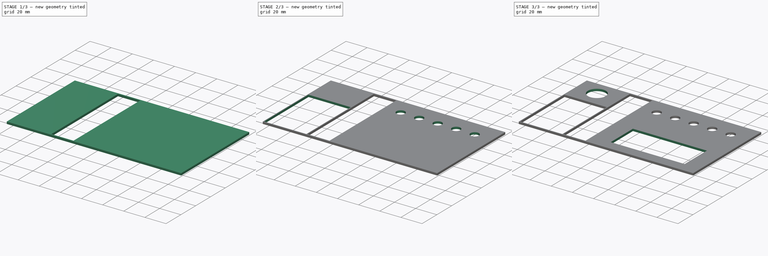
[diagram: build sequence overview — one tinted view per stage of 3, left to right]
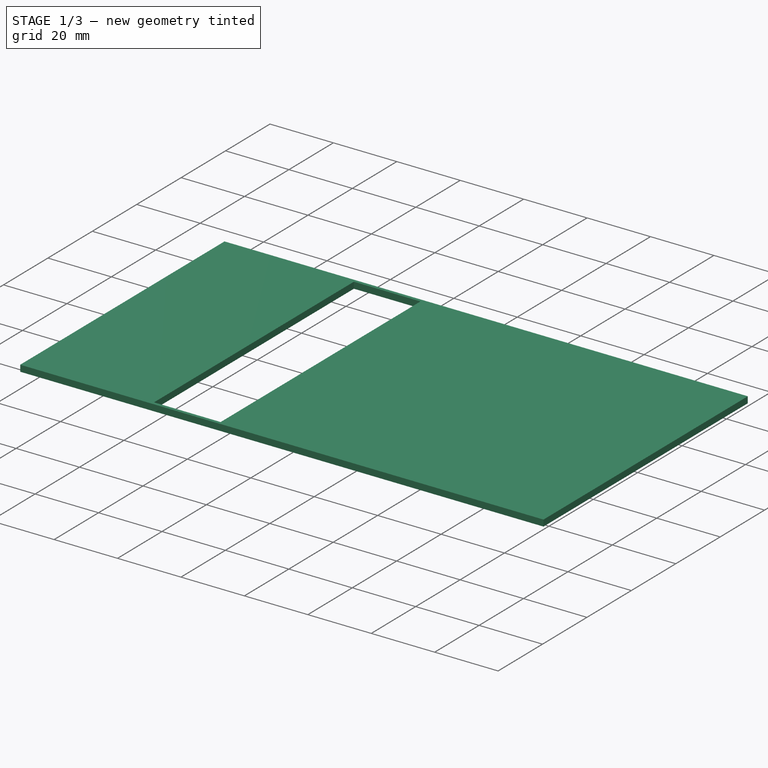
[diagram: stage 1 of 3 — iso view after this stage's code; geometry added in this stage tinted green]
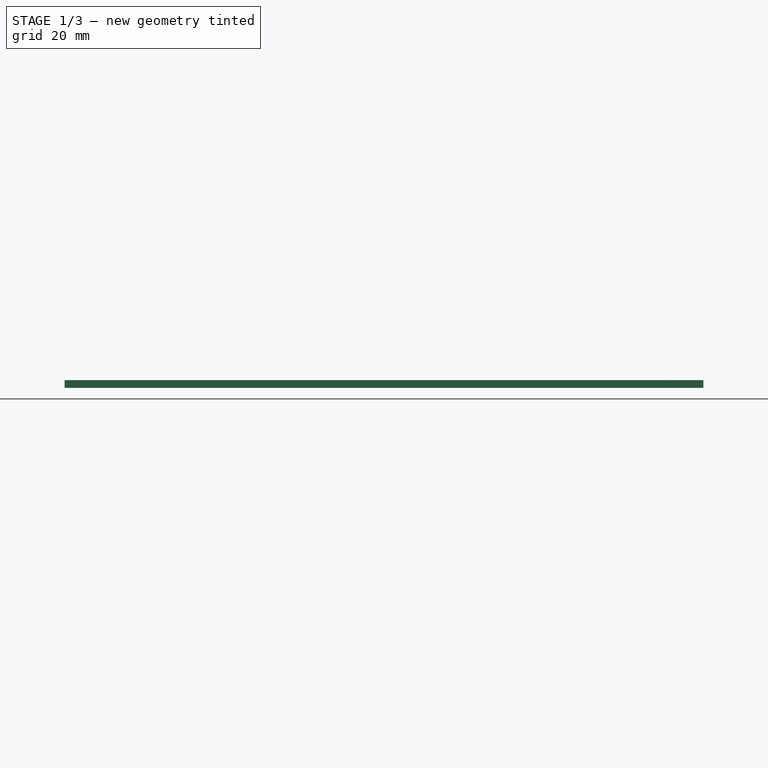
[diagram: stage 1 of 3 — front view after this stage's code; geometry added in this stage tinted green]
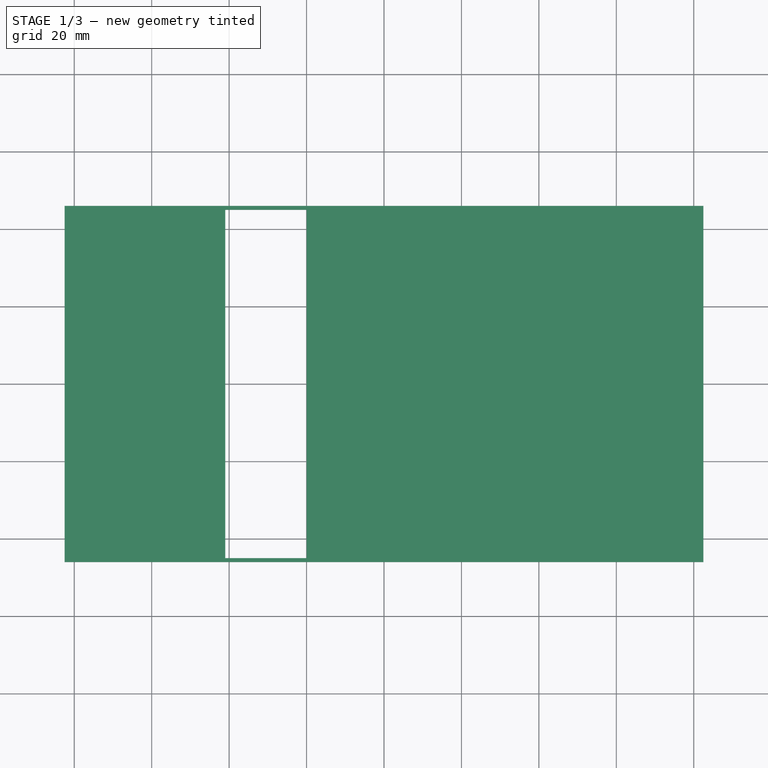
[diagram: stage 1 of 3 — top view after this stage's code; geometry added in this stage tinted green]
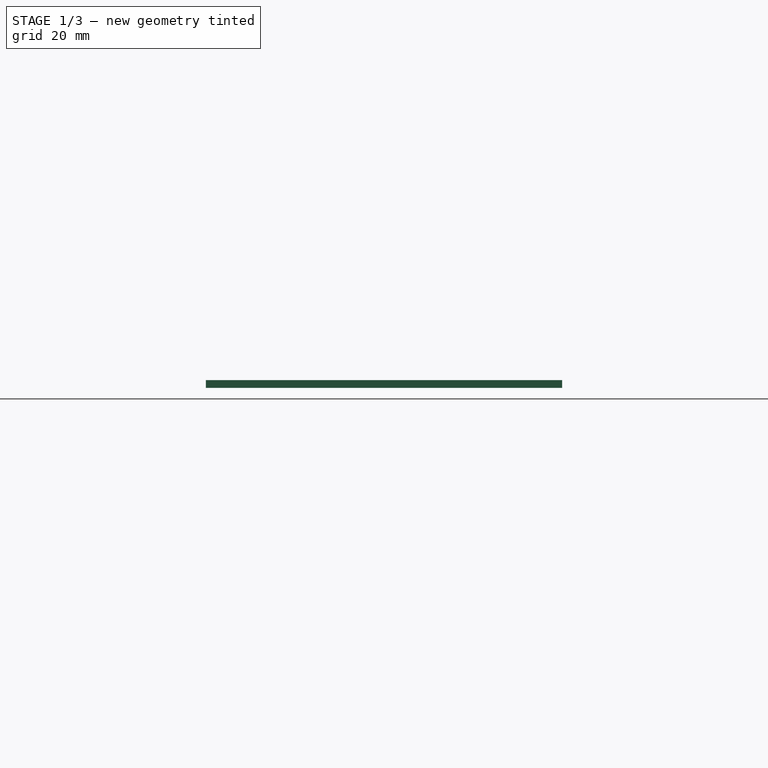
[diagram: stage 1 of 3 — right view after this stage's code; geometry added in this stage tinted green]
FCSTD DOCUMENT  (FreeCAD 0.20R29177 (Git))
Label: Top Plate
License: All rights reserved
LicenseURL: https://en.wikipedia.org/wiki/All_rights_reserved
objects: Sketcher::SketchObject×6, PartDesign::CoordinateSystem×5, PartDesign::Pocket×5, PartDesign::Pad×1, PartDesign::Body×1
note: 24 computed .brp shape members not serialized (recipe doc carries the construction recipe); baked Part::Feature solids carry a one-line shape summary decoded from their .brp

FEATURE [PartDesign::CoordinateSystem] LCS_Origin
  AttacherType = Attacher::AttachEngine3D
  MapMode = 2
  Support = -> [X_Axis]
FEATURE [Sketcher::SketchObject] Sketch
  FullyConstrained = true
  MapMode = 5
  Support = -> [XY_Plane]
  sketch-geometry (4):
    g0: LineSegment StartX=-82.5 StartY=46 StartZ=0 EndX=82.5 EndY=46 EndZ=0
    g1: LineSegment StartX=82.5 StartY=46 StartZ=0 EndX=82.5 EndY=-46 EndZ=0
    g2: LineSegment StartX=82.5 StartY=-46 StartZ=0 EndX=-82.5 EndY=-46 EndZ=0
    g3: LineSegment StartX=-82.5 StartY=-46 StartZ=0 EndX=-82.5 EndY=46 EndZ=0
  constraints (11):
    c: Coincident(g0,g1)
    c: Coincident(g1,g2)
    c: Coincident(g2,g3)
    c: Coincident(g3,g0)
    c: Horizontal(g0)
    c: Horizontal(g2)
    c: Vertical(g1)
    c: Vertical(g3)
    c: Symmetric(g0,g1,g-1)
    c: DistanceX(g2,g2) = 165
    c: DistanceY(g1,g1) = 92
FEATURE [PartDesign::Pad] Pad  label="Base"
  Direction = (0,0,1)
  Length = 2
  Length2 = 10
  Profile = -> Sketch
  ReferenceAxis = -> Sketch [N_Axis]
  Refine = true
  Type = 0
FEATURE [Sketcher::SketchObject] Sketch001
  FullyConstrained = true
  MapMode = 5
  Support = -> [XY_Plane]
  sketch-geometry (4):
    g0: LineSegment StartX=-41 StartY=45 StartZ=0 EndX=-20 EndY=45 EndZ=0
    g1: LineSegment StartX=-20 StartY=45 StartZ=0 EndX=-20 EndY=-45 EndZ=0
    g2: LineSegment StartX=-20 StartY=-45 StartZ=0 EndX=-41 EndY=-45 EndZ=0
    g3: LineSegment StartX=-41 StartY=-45 StartZ=0 EndX=-41 EndY=45 EndZ=0
  constraints (12):
    c: Coincident(g0,g1)
    c: Coincident(g1,g2)
    c: Coincident(g2,g3)
    c: Coincident(g3,g0)
    c: Horizontal(g0)
    c: Horizontal(g2)
    c: Vertical(g1)
    c: Vertical(g3)
    c: DistanceY(g1,g1) = 90
    c: DistanceY(g-1,g0) = 45
    c: DistanceX(g0,g0) = 21
    c: DistanceX(g1,g-1) = 20
FEATURE [PartDesign::Pocket] Pocket  label="Slider Hole"
  BaseFeature = -> Pad
  Direction = (0,0,-1)
  Length = 5
  Length2 = 5
  Profile = -> Sketch001
  ReferenceAxis = -> Sketch001 [N_Axis]
  Refine = true
  Reversed = true
  Type = 0
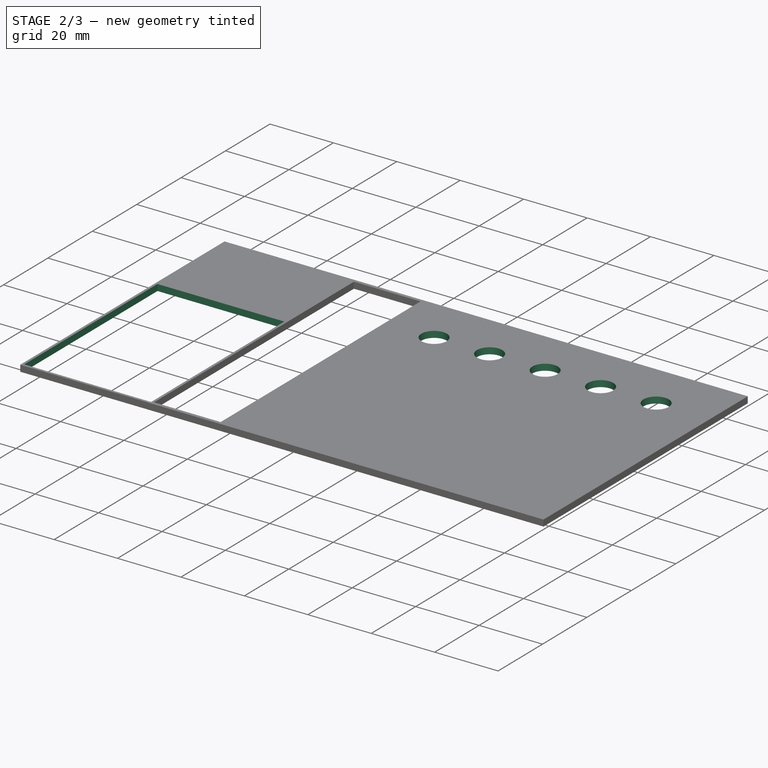
[diagram: stage 2 of 3 — iso view after this stage's code; geometry added in this stage tinted green]
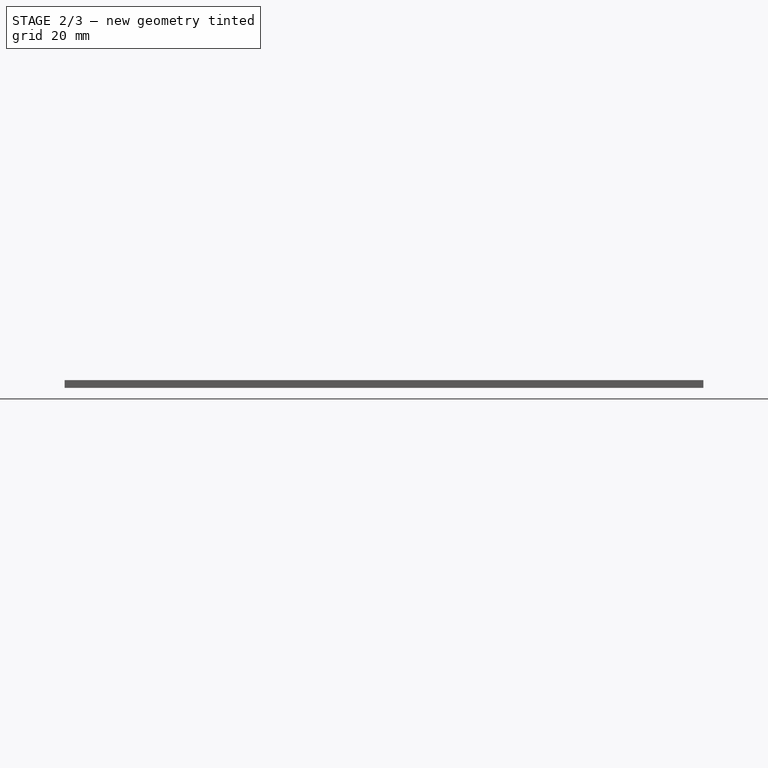
[diagram: stage 2 of 3 — front view after this stage's code; geometry added in this stage tinted green]
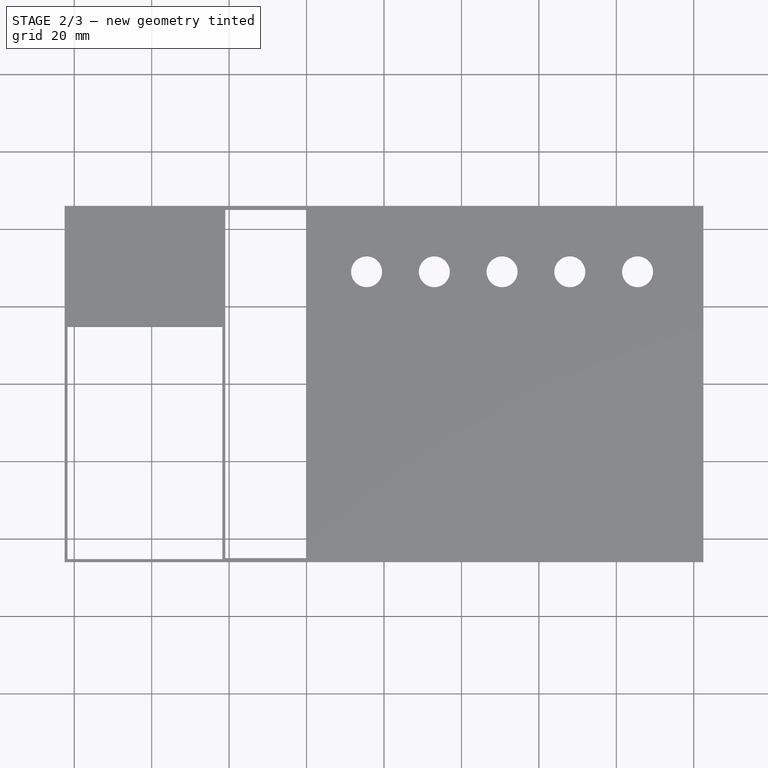
[diagram: stage 2 of 3 — top view after this stage's code; geometry added in this stage tinted green]
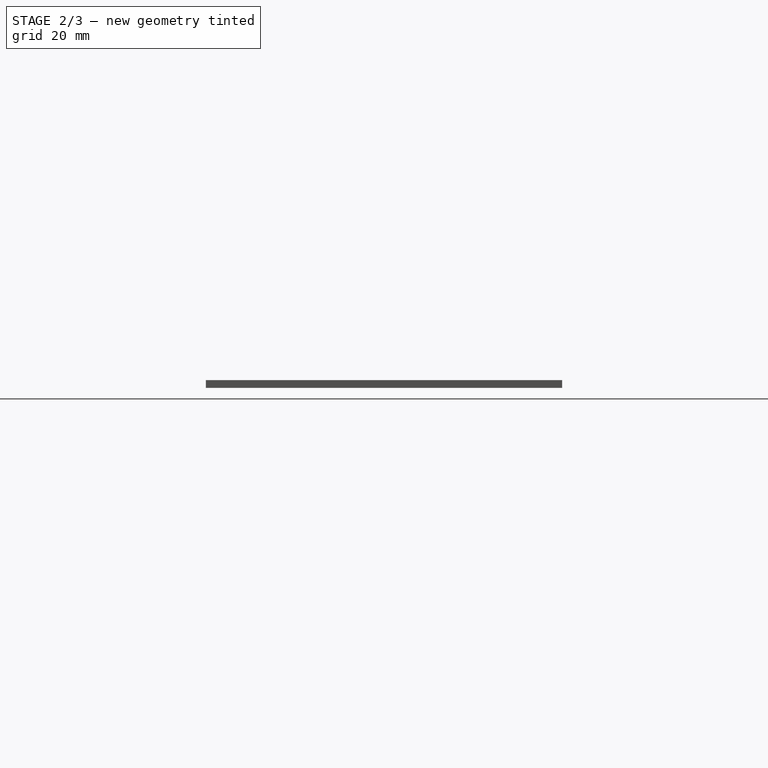
[diagram: stage 2 of 3 — right view after this stage's code; geometry added in this stage tinted green]
FEATURE [Sketcher::SketchObject] Sketch002
  ExternalGeometry = -> [Pocket]
  FullyConstrained = true
  MapMode = 5
  Support = -> [XY_Plane]
  sketch-geometry (9):
    g0: Circle CenterX=-4.5 CenterY=29 CenterZ=0 NormalX=0 NormalY=0 NormalZ=1 AngleXU=0 Radius=4
    g1: Circle CenterX=13 CenterY=29 CenterZ=0 NormalX=0 NormalY=0 NormalZ=1 AngleXU=0 Radius=4
    g2: Circle CenterX=30.5 CenterY=29 CenterZ=0 NormalX=0 NormalY=0 NormalZ=1 AngleXU=0 Radius=4
    g3: Circle CenterX=48 CenterY=29 CenterZ=0 NormalX=0 NormalY=0 NormalZ=1 AngleXU=0 Radius=4
    g4: Circle CenterX=65.5 CenterY=29 CenterZ=0 NormalX=0 NormalY=0 NormalZ=1 AngleXU=0 Radius=4
    g5: LineSegment StartX=-4.5 StartY=29 StartZ=0 EndX=13 EndY=29 EndZ=0
    g6: LineSegment StartX=13 StartY=29 StartZ=0 EndX=30.5 EndY=29 EndZ=0
    g7: LineSegment StartX=30.5 StartY=29 StartZ=0 EndX=48 EndY=29 EndZ=0
    g8: LineSegment StartX=48 StartY=29 StartZ=0 EndX=65.5 EndY=29 EndZ=0
  constraints (23):
    c: Coincident(g5,g0)
    c: Coincident(g5,g1)
    c: Horizontal(g5)
    c: Coincident(g6,g1)
    c: Coincident(g6,g2)
    c: Horizontal(g6)
    c: Coincident(g7,g2)
    c: Coincident(g7,g3)
    c: Coincident(g8,g3)
    c: Coincident(g8,g4)
    c: Horizontal(g7)
    c: Horizontal(g8)
    c: Equal(g8,g7)
    c: Equal(g7,g6)
    c: Equal(g6,g5)
    c: Equal(g0,g2)
    c: Equal(g2,g3)
    c: Equal(g3,g4)
    c: Equal(g4,g1)
    c: Diameter(g0) = 8
    c: DistanceX(g8,g8) = 17.5
    c: DistanceX(g4,g-4) = 17
    c: DistanceY(g4,g-4) = 17
FEATURE [PartDesign::Pocket] Pocket001  label="Potentiometers Hole"
  BaseFeature = -> Pocket
  Direction = (0,0,-1)
  Length = 5
  Length2 = 5
  Profile = -> Sketch002
  ReferenceAxis = -> Sketch002 [N_Axis]
  Refine = true
  Reversed = true
  Type = 0
FEATURE [Sketcher::SketchObject] Sketch003
  ExternalGeometry = -> [Pocket001]
  FullyConstrained = true
  MapMode = 5
  Support = -> [XY_Plane]
  sketch-geometry (4):
    g0: LineSegment StartX=-81.75 StartY=14.75 StartZ=0 EndX=-41.75 EndY=14.75 EndZ=0
    g1: LineSegment StartX=-41.75 StartY=14.75 StartZ=0 EndX=-41.75 EndY=-45.25 EndZ=0
    g2: LineSegment StartX=-41.75 StartY=-45.25 StartZ=0 EndX=-81.75 EndY=-45.25 EndZ=0
    g3: LineSegment StartX=-81.75 StartY=-45.25 StartZ=0 EndX=-81.75 EndY=14.75 EndZ=0
  constraints (12):
    c: Coincident(g0,g1)
    c: Coincident(g1,g2)
    c: Coincident(g2,g3)
    c: Coincident(g3,g0)
    c: Horizontal(g0)
    c: Horizontal(g2)
    c: Vertical(g1)
    c: Vertical(g3)
    c: DistanceX(g2,g2) = 40
    c: DistanceY(g3,g3) = 60
    c: DistanceX(g-4,g2) = 0.75
    c: DistanceY(g-4,g2) = 0.75
FEATURE [PartDesign::Pocket] Pocket002  label="LCD Hole"
  BaseFeature = -> Pocket001
  Direction = (0,0,-1)
  Length = 5
  Length2 = 5
  Profile = -> Sketch003
  ReferenceAxis = -> Sketch003 [N_Axis]
  Refine = true
  Reversed = true
  Type = 0
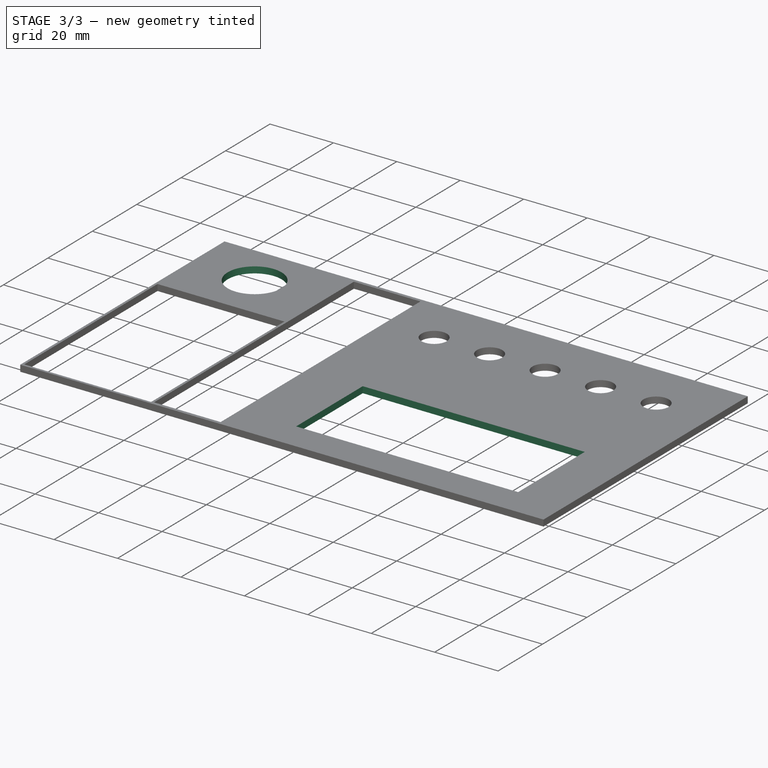
[diagram: stage 3 of 3 — iso view after this stage's code; geometry added in this stage tinted green]
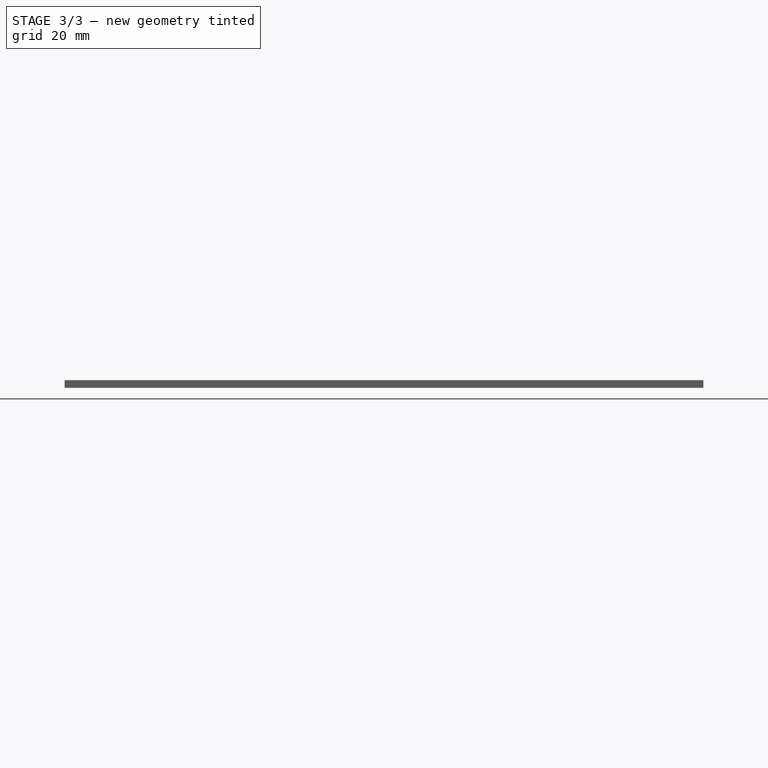
[diagram: stage 3 of 3 — front view after this stage's code; geometry added in this stage tinted green]
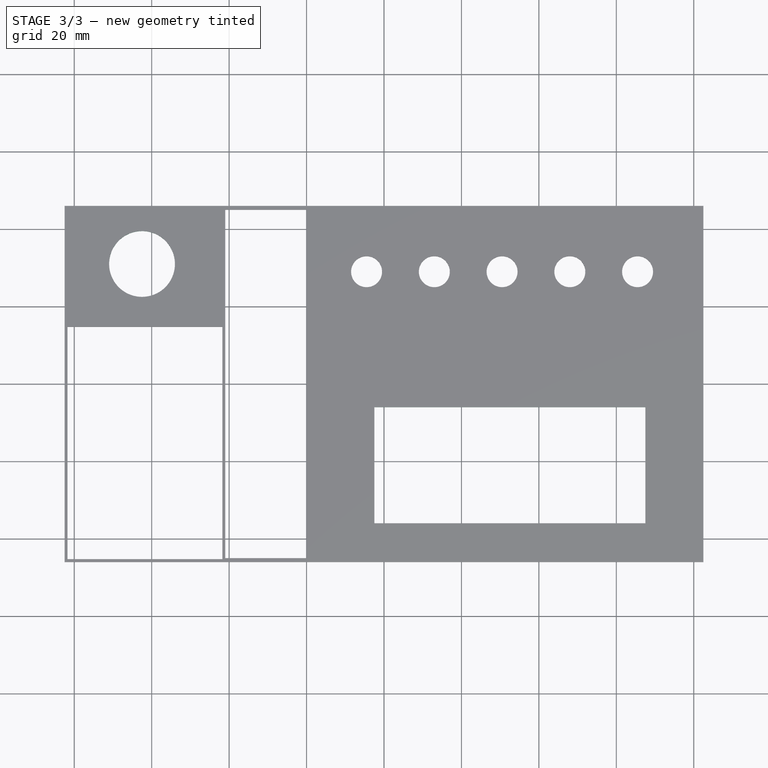
[diagram: stage 3 of 3 — top view after this stage's code; geometry added in this stage tinted green]
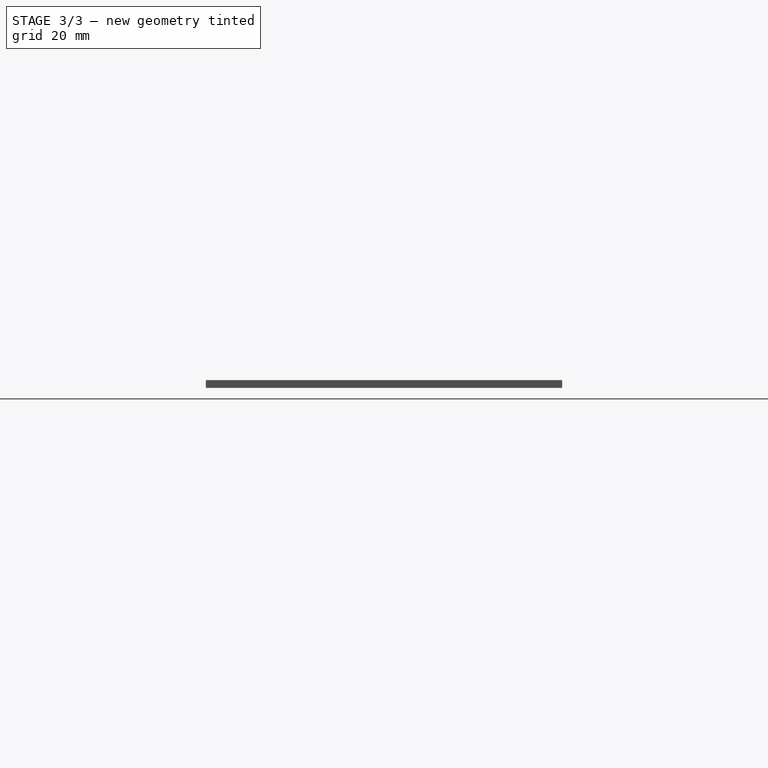
[diagram: stage 3 of 3 — right view after this stage's code; geometry added in this stage tinted green]
FEATURE [Sketcher::SketchObject] Sketch004
  ExternalGeometry = -> [Pocket002]
  FullyConstrained = true
  MapMode = 5
  Support = -> [XY_Plane]
  sketch-geometry (1):
    g0: Circle CenterX=-62.5 CenterY=31 CenterZ=0 NormalX=0 NormalY=0 NormalZ=1 AngleXU=0 Radius=8.5
  constraints (3):
    c: Diameter(g0) = 17
    c: DistanceX(g-3,g0) = 20
    c: DistanceY(g0,g-3) = 15
FEATURE [PartDesign::Pocket] Pocket003  label="Button Hole"
  BaseFeature = -> Pocket002
  Direction = (0,0,-1)
  Length = 5
  Length2 = 5
  Profile = -> Sketch004
  ReferenceAxis = -> Sketch004 [N_Axis]
  Refine = true
  Reversed = true
  Type = 0
FEATURE [PartDesign::CoordinateSystem] LCS_Slider
  AttacherType = Attacher::AttachEngine3D
  MapMode = 45
  Placement = pos=(-30.5,0,2) rot=(0,0,1;0rad)
  Support = -> [Pocket003]
FEATURE [PartDesign::CoordinateSystem] LCS_Potentiometers
  AttacherType = Attacher::AttachEngine3D
  MapMode = 11
  Placement = pos=(30.5,29,2) rot=(0.707107,-0.707107,0;3.14159rad)
  Support = -> [Pocket003]
FEATURE [PartDesign::CoordinateSystem] LCS_LCD
  AttacherType = Attacher::AttachEngine3D
  MapMode = 45
  Placement = pos=(-61.75,-15.25,2) rot=(0,0,1;0rad)
  Support = -> [Pocket003]
FEATURE [Sketcher::SketchObject] Sketch005
  ExternalGeometry = -> [Pad]
  FullyConstrained = true
  MapMode = 5
  Support = -> [XY_Plane]
  sketch-geometry (5):
    g0: LineSegment StartX=67.5 StartY=-36 StartZ=0 EndX=67.5 EndY=-6 EndZ=0
    g1: LineSegment StartX=67.5 StartY=-6 StartZ=0 EndX=-2.5 EndY=-6 EndZ=0
    g2: LineSegment StartX=-2.5 StartY=-6 StartZ=0 EndX=-2.5 EndY=-36 EndZ=0
    g3: LineSegment StartX=-2.5 StartY=-36 StartZ=0 EndX=67.5 EndY=-36 EndZ=0
    g4: GeomPoint X=32.5 Y=-21 Z=0
  constraints (13):
    c: Coincident(g0,g1)
    c: Coincident(g1,g2)
    c: Coincident(g2,g3)
    c: Coincident(g3,g0)
    c: Horizontal(g1)
    c: Horizontal(g3)
    c: Vertical(g0)
    c: Vertical(g2)
    c: Symmetric(g1,g0,g4)
    c: DistanceX(g1,g1) = 70
    c: DistanceY(g0,g0) = 30
    c: DistanceX(g4,g-4) = 50
    c: DistanceY(g-4,g0) = 10
FEATURE [PartDesign::Pocket] Pocket004  label="Dsub Hole"
  BaseFeature = -> Pocket003
  Direction = (0,0,-1)
  Length = 5
  Length2 = 5
  Profile = -> Sketch005
  ReferenceAxis = -> Sketch005 [N_Axis]
  Refine = true
  Reversed = true
  Type = 0
FEATURE [PartDesign::CoordinateSystem] LCS_Dsub
  AttacherType = Attacher::AttachEngine3D
  MapMode = 45
  Placement = pos=(32.5,-21,2) rot=(0,0,1;1.5708rad)
  Support = -> [Pocket004]
FEATURE [PartDesign::Body] Body
  Group = -> [LCS_Origin,Sketch,Pad,Sketch001,Pocket,Sketch002,Pocket001,Sketch003,Pocket002,Sketch004,Pocket003,LCS_Slider,LCS_Potentiometers,LCS_LCD,Sketch005,Pocket004,LCS_Dsub]
  Origin = -> Origin
  Tip = -> Pocket004
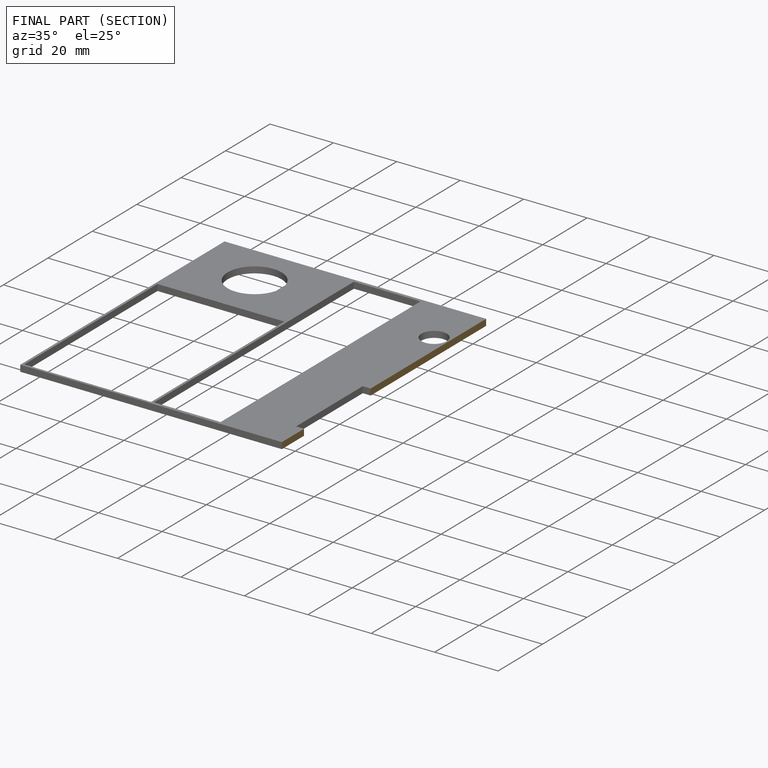
[diagram: finished part — half-section view (interior)]
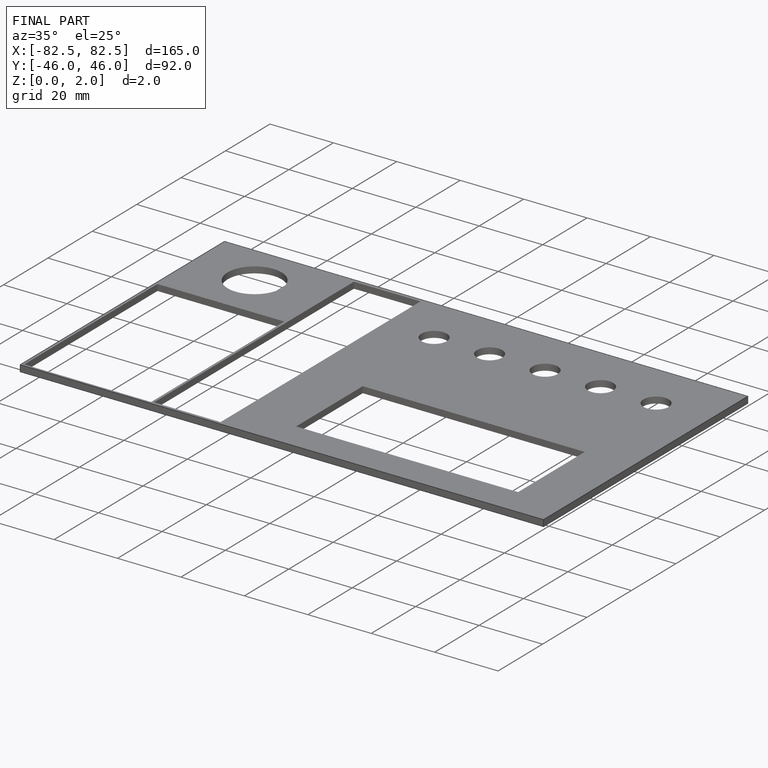
[diagram: finished part — iso view with bounding-box wireframe]
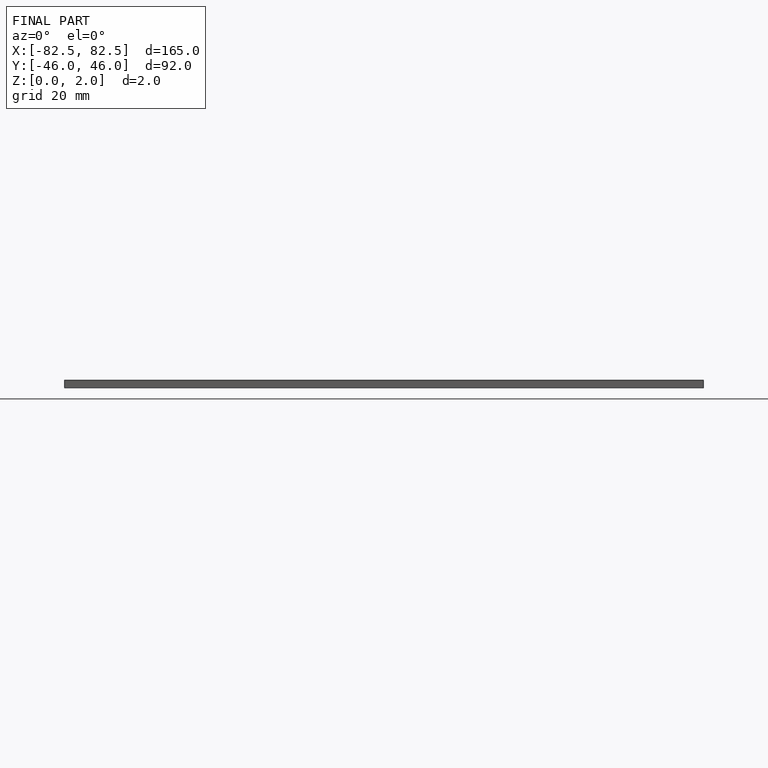
[diagram: finished part — front view with bounding-box wireframe]
